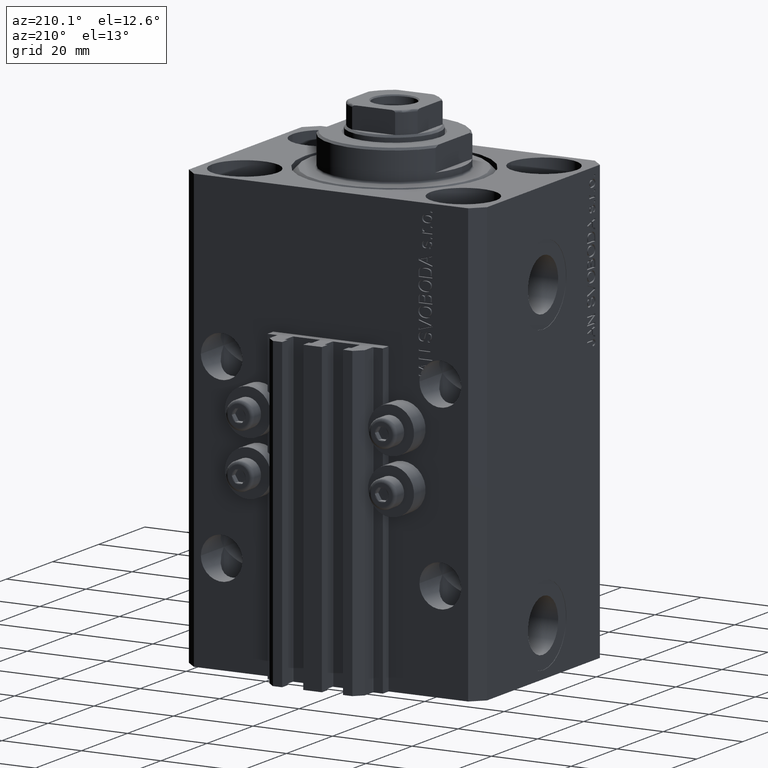
[diagram: clean part render]
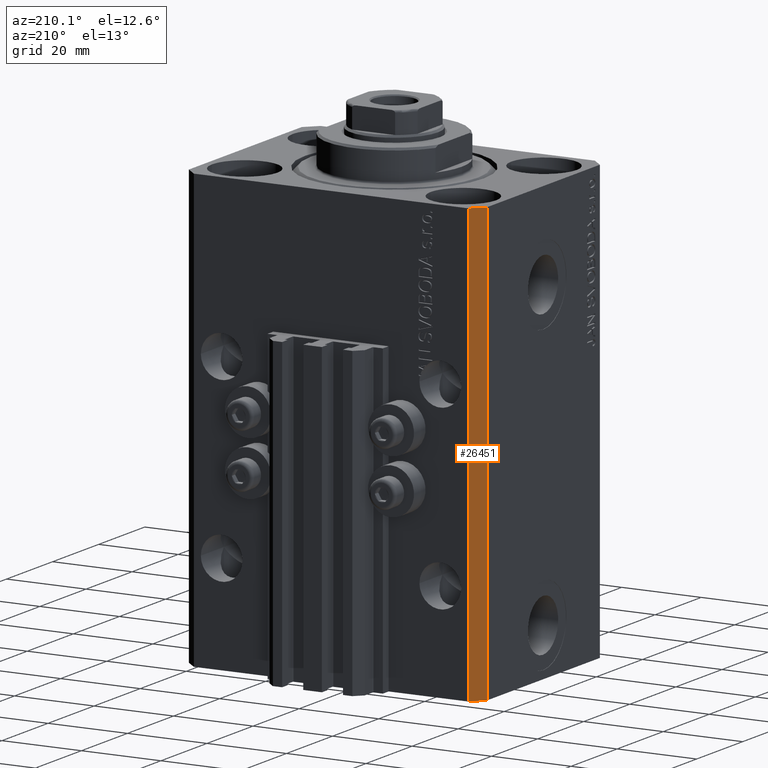
[diagram: same view with one face highlighted and labeled with its STEP entity id]
A machine part, auxiliary view. The second image highlights one B-rep face of the part: STEP entity #26451.
In plain terms, the highlighted planar face has unit normal (-0.7071, 0.7071, 0).
Its self-contained STEP definition (entity closure, byte-faithful):
#212 = AXIS2_PLACEMENT_3D ( 'NONE', #18712, #29729, #14434 ) ;
#429 = DIRECTION ( 'NONE',  ( 0.000000000000000000, 0.000000000000000000, 1.000000000000000000 ) ) ;
#3655 = VECTOR ( 'NONE', #4940, 1000.000000000000000 ) ;
#3806 = ORIENTED_EDGE ( 'NONE', *, *, #18443, .T. ) ;
#3810 = EDGE_LOOP ( 'NONE', ( #19076, #35295, #21067, #3806 ) ) ;
#4557 = CARTESIAN_POINT ( 'NONE',  ( -34.49999999999999289, 27.50000000000000000, -110.0000000000000000 ) ) ;
#4840 = CARTESIAN_POINT ( 'NONE',  ( -37.49999999999999289, 24.50000000000000000, -110.0000000000000000 ) ) ;
#4940 = DIRECTION ( 'NONE',  ( 0.000000000000000000, 0.000000000000000000, 1.000000000000000000 ) ) ;
#5946 = EDGE_CURVE ( 'NONE', #17947, #40098, #45402, .T. ) ;
#11638 = LINE ( 'NONE', #37752, #3655 ) ;
#14434 = DIRECTION ( 'NONE',  ( -0.7071067811865471286, -0.7071067811865479058, 0.000000000000000000 ) ) ;
#14664 = FACE_OUTER_BOUND ( 'NONE', #3810, .T. ) ;
#16457 = EDGE_CURVE ( 'NONE', #31674, #17947, #11638, .T. ) ;
#16775 = VECTOR ( 'NONE', #25420, 1000.000000000000000 ) ;
#17947 = VERTEX_POINT ( 'NONE', #36940 ) ;
#18393 = CARTESIAN_POINT ( 'NONE',  ( -37.49999999999999289, 24.50000000000000000, -110.0000000000000000 ) ) ;
#18443 = EDGE_CURVE ( 'NONE', #19402, #40098, #32085, .T. ) ;
#18468 = LINE ( 'NONE', #4557, #16775 ) ;
#18712 = CARTESIAN_POINT ( 'NONE',  ( -34.49999999999999289, 27.50000000000000000, -110.0000000000000000 ) ) ;
#19076 = ORIENTED_EDGE ( 'NONE', *, *, #5946, .F. ) ;
#19402 = VERTEX_POINT ( 'NONE', #4840 ) ;
#19445 = VECTOR ( 'NONE', #34159, 1000.000000000000000 ) ;
#20507 = EDGE_CURVE ( 'NONE', #31674, #19402, #18468, .T. ) ;
#21067 = ORIENTED_EDGE ( 'NONE', *, *, #20507, .T. ) ;
#21841 = PLANE ( 'NONE',  #212 ) ;
#25420 = DIRECTION ( 'NONE',  ( -0.7071067811865471286, -0.7071067811865479058, 0.000000000000000000 ) ) ;
#26451 = ADVANCED_FACE ( 'NONE', ( #14664 ), #21841, .T. ) ;
#26725 = CARTESIAN_POINT ( 'NONE',  ( -34.49999999999999289, 27.50000000000000000, 0.000000000000000000 ) ) ;
#27175 = CARTESIAN_POINT ( 'NONE',  ( -37.49999999999999289, 24.50000000000000000, 0.000000000000000000 ) ) ;
#29729 = DIRECTION ( 'NONE',  ( -0.7071067811865479058, 0.7071067811865471286, 0.000000000000000000 ) ) ;
#31674 = VERTEX_POINT ( 'NONE', #47089 ) ;
#32085 = LINE ( 'NONE', #18393, #34291 ) ;
#34159 = DIRECTION ( 'NONE',  ( -0.7071067811865471286, -0.7071067811865479058, 0.000000000000000000 ) ) ;
#34291 = VECTOR ( 'NONE', #429, 1000.000000000000000 ) ;
#35295 = ORIENTED_EDGE ( 'NONE', *, *, #16457, .F. ) ;
#36940 = CARTESIAN_POINT ( 'NONE',  ( -34.49999999999999289, 27.50000000000000000, 0.000000000000000000 ) ) ;
#37752 = CARTESIAN_POINT ( 'NONE',  ( -34.49999999999999289, 27.50000000000000000, -110.0000000000000000 ) ) ;
#40098 = VERTEX_POINT ( 'NONE', #27175 ) ;
#45402 = LINE ( 'NONE', #26725, #19445 ) ;
#47089 = CARTESIAN_POINT ( 'NONE',  ( -34.49999999999999289, 27.50000000000000000, -110.0000000000000000 ) ) ;